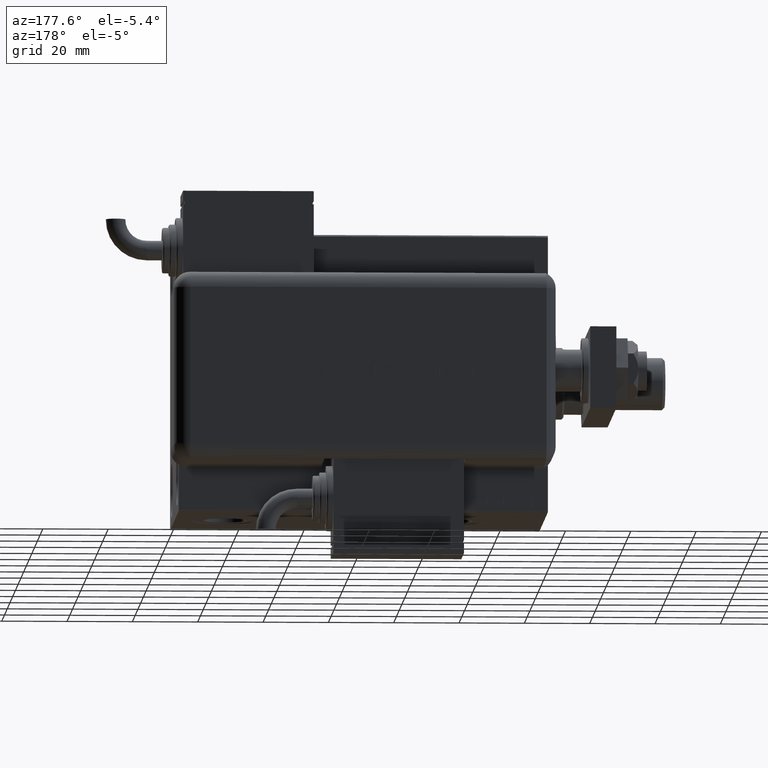
[diagram: clean part render]
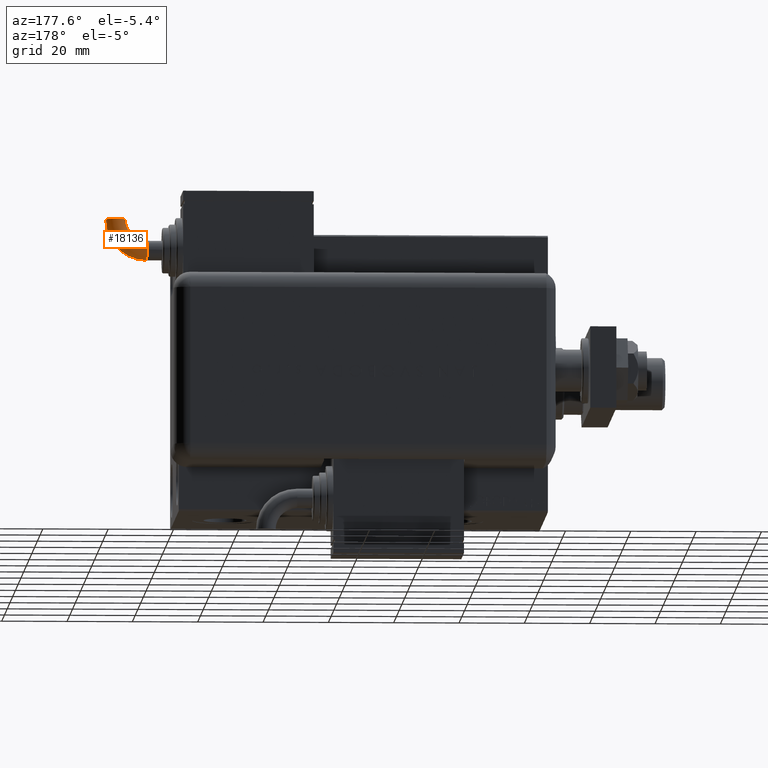
[diagram: same view with one face highlighted and labeled with its STEP entity id]
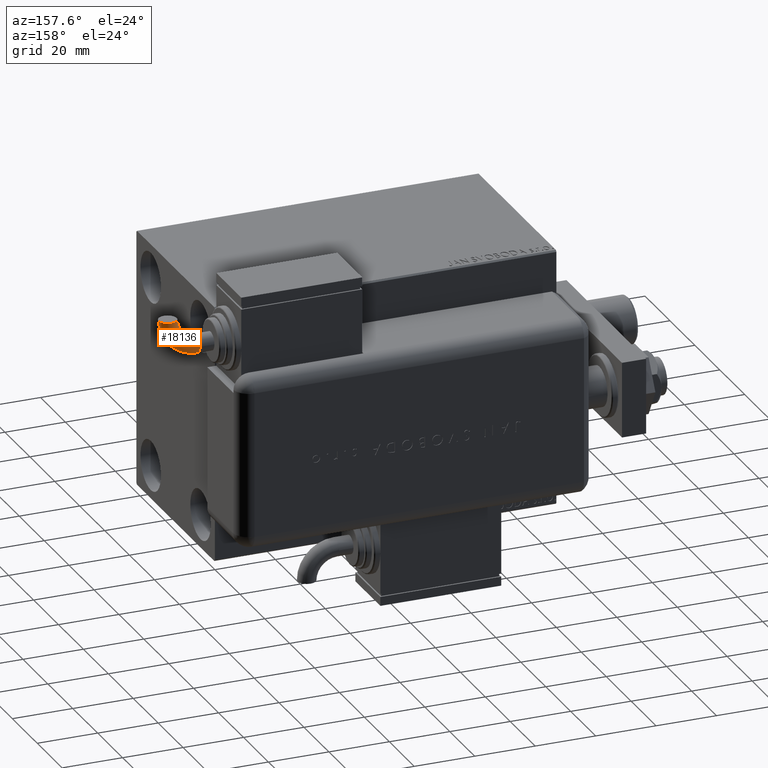
[diagram: same view with one face highlighted and labeled with its STEP entity id]
A machine part, auxiliary view. The second image highlights one B-rep face of the part: STEP entity #18136.
A second angle (auxiliary view) of the same face is appended — the face is thin or edge-on in the first view.
In plain terms, the highlighted toroidal blend (fillet) surface has major radius 9.5072 mm and minor (blend) radius 3 mm.
Its self-contained STEP definition (entity closure, byte-faithful):
#3716 = CARTESIAN_POINT ( 'NONE',  ( -30.75201677704342274, -9.507211519273942812, -3.673940397442055924E-16 ) ) ;
#4021 = DIRECTION ( 'NONE',  ( 0.000000000000000000, 0.000000000000000000, 1.000000000000000000 ) ) ;
#4695 = VERTEX_POINT ( 'NONE', #10984 ) ;
#4894 = AXIS2_PLACEMENT_3D ( 'NONE', #3716, #4021, #11933 ) ;
#5214 = ORIENTED_EDGE ( 'NONE', *, *, #25303, .T. ) ;
#9317 = DIRECTION ( 'NONE',  ( -0.9999999999726024713, -7.402363701169985951E-06, 0.000000000000000000 ) ) ;
#10984 = CARTESIAN_POINT ( 'NONE',  ( -37.25922829613910636, -9.507259688020280208, -3.673940397551225891E-16 ) ) ;
#11773 = CIRCLE ( 'NONE', #29280, 2.999999999999996003 ) ;
#11933 = DIRECTION ( 'NONE',  ( 1.000000000000000000, 0.000000000000000000, 0.000000000000000000 ) ) ;
#12179 = ORIENTED_EDGE ( 'NONE', *, *, #33326, .F. ) ;
#14478 = CARTESIAN_POINT ( 'NONE',  ( -40.25922829605691078, -9.507281895111381331, 0.000000000000000000 ) ) ;
#15787 = DIRECTION ( 'NONE',  ( 1.000000000000000000, 1.025520576932673761E-15, 0.000000000000000000 ) ) ;
#16672 = FACE_OUTER_BOUND ( 'NONE', #22339, .T. ) ;
#17213 = AXIS2_PLACEMENT_3D ( 'NONE', #14478, #33349, #9317 ) ;
#17934 = DIRECTION ( 'NONE',  ( 1.000000000000000000, 1.025520576932673761E-15, 0.000000000000000000 ) ) ;
#18136 = ADVANCED_FACE ( 'NONE', ( #16672 ), #29709, .T. ) ;
#18355 = CARTESIAN_POINT ( 'NONE',  ( -30.75201677704342274, -9.507211519273942812, 0.000000000000000000 ) ) ;
#19303 = CARTESIAN_POINT ( 'NONE',  ( -43.25922829597471519, -9.507304102202486007, 0.000000000000000000 ) ) ;
#20939 = EDGE_CURVE ( 'NONE', #4695, #40631, #60021, .T. ) ;
#21550 = DIRECTION ( 'NONE',  ( 0.000000000000000000, 0.000000000000000000, 1.000000000000000000 ) ) ;
#21681 = AXIS2_PLACEMENT_3D ( 'NONE', #18355, #40367, #31204 ) ;
#22339 = EDGE_LOOP ( 'NONE', ( #33282, #50489, #12179, #5214, #36206 ) ) ;
#23388 = VERTEX_POINT ( 'NONE', #43900 ) ;
#23735 = AXIS2_PLACEMENT_3D ( 'NONE', #44408, #15787, #34371 ) ;
#25303 = EDGE_CURVE ( 'NONE', #23388, #4695, #52515, .T. ) ;
#25800 = DIRECTION ( 'NONE',  ( 1.000000000000000000, 0.000000000000000000, 0.000000000000000000 ) ) ;
#29280 = AXIS2_PLACEMENT_3D ( 'NONE', #40768, #17934, #49879 ) ;
#29709 = TOROIDAL_SURFACE ( 'NONE', #45346, 9.507211519273964129, 2.999999999999996891 ) ;
#31204 = DIRECTION ( 'NONE',  ( 1.000000000000000000, 0.000000000000000000, 0.000000000000000000 ) ) ;
#33282 = ORIENTED_EDGE ( 'NONE', *, *, #55017, .F. ) ;
#33326 = EDGE_CURVE ( 'NONE', #23388, #53827, #52867, .T. ) ;
#33349 = DIRECTION ( 'NONE',  ( -7.402363701065945741E-06, 0.9999999999726024713, 0.000000000000000000 ) ) ;
#34371 = DIRECTION ( 'NONE',  ( -1.156482317317872908E-15, 1.000000000000000000, 0.000000000000000000 ) ) ;
#36206 = ORIENTED_EDGE ( 'NONE', *, *, #20939, .T. ) ;
#37191 = VERTEX_POINT ( 'NONE', #55676 ) ;
#40367 = DIRECTION ( 'NONE',  ( 0.000000000000000000, 0.000000000000000000, 1.000000000000000000 ) ) ;
#40631 = VERTEX_POINT ( 'NONE', #19303 ) ;
#40768 = CARTESIAN_POINT ( 'NONE',  ( -30.75201677704342274, 2.081668171172168513E-14, 0.000000000000000000 ) ) ;
#42138 = CIRCLE ( 'NONE', #21681, 12.50721151927396058 ) ;
#42757 = CARTESIAN_POINT ( 'NONE',  ( -30.75201677704342274, 2.118407575146589373E-14, -2.999999999999997335 ) ) ;
#43900 = CARTESIAN_POINT ( 'NONE',  ( -30.75201677704341918, -2.999999999999976463, -3.673940397442056910E-16 ) ) ;
#44408 = CARTESIAN_POINT ( 'NONE',  ( -30.75201677704342274, 2.081668171172168513E-14, 0.000000000000000000 ) ) ;
#45346 = AXIS2_PLACEMENT_3D ( 'NONE', #58068, #21550, #25800 ) ;
#49879 = DIRECTION ( 'NONE',  ( -1.156482317317872908E-15, 1.000000000000000000, 0.000000000000000000 ) ) ;
#50151 = EDGE_CURVE ( 'NONE', #53827, #37191, #11773, .T. ) ;
#50489 = ORIENTED_EDGE ( 'NONE', *, *, #50151, .F. ) ;
#52515 = CIRCLE ( 'NONE', #4894, 6.507211519273966793 ) ;
#52867 = CIRCLE ( 'NONE', #23735, 2.999999999999996003 ) ;
#53827 = VERTEX_POINT ( 'NONE', #42757 ) ;
#55017 = EDGE_CURVE ( 'NONE', #37191, #40631, #42138, .T. ) ;
#55676 = CARTESIAN_POINT ( 'NONE',  ( -30.75201677704342629, 3.000000000000017319, 0.000000000000000000 ) ) ;
#58068 = CARTESIAN_POINT ( 'NONE',  ( -30.75201677704342274, -9.507211519273942812, 0.000000000000000000 ) ) ;
#60021 = CIRCLE ( 'NONE', #17213, 2.999999999999996891 ) ;